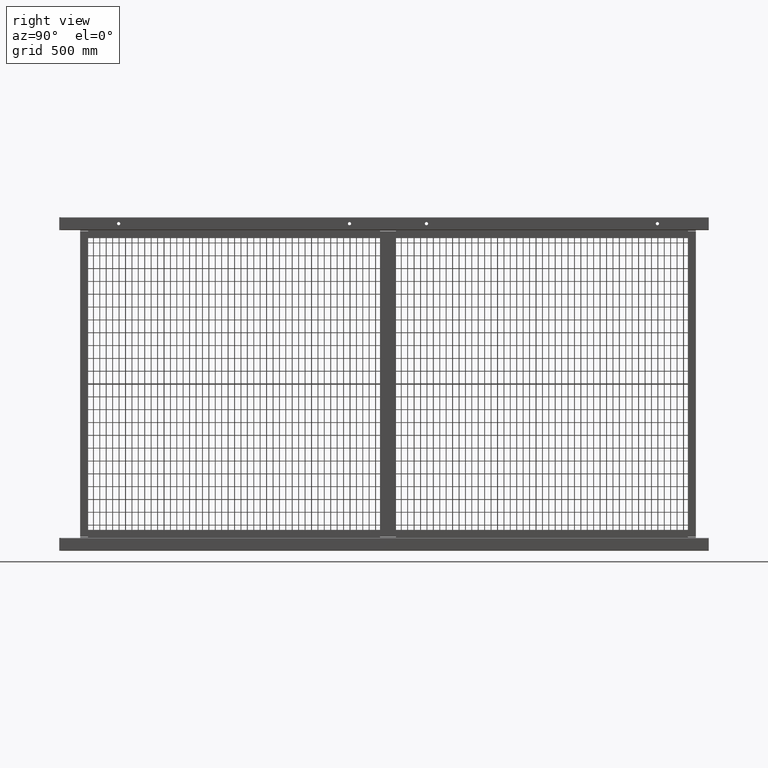
[diagram: clean part render]
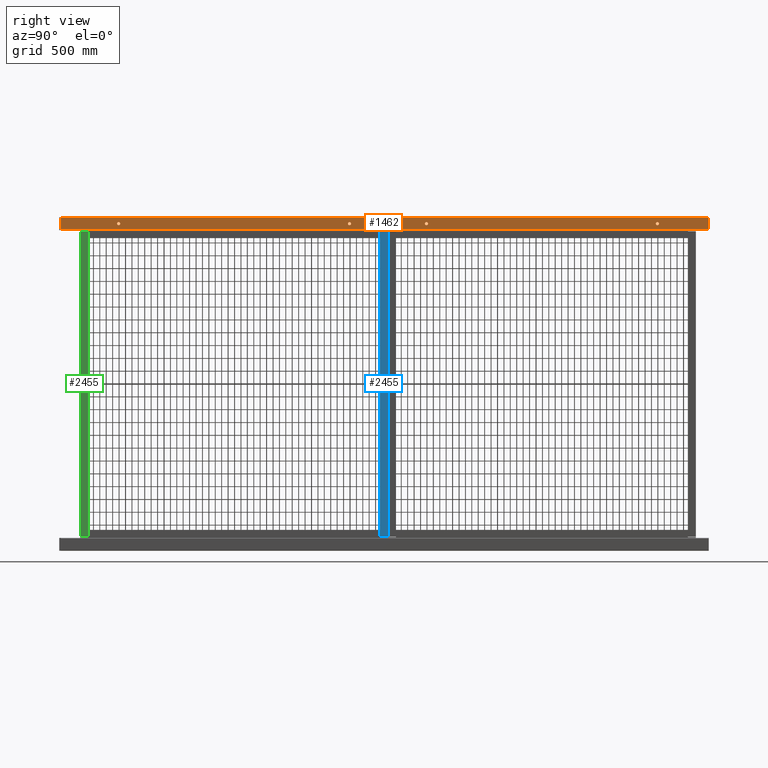
[diagram: same view with three faces highlighted in distinct colors, each labeled with its STEP entity id]
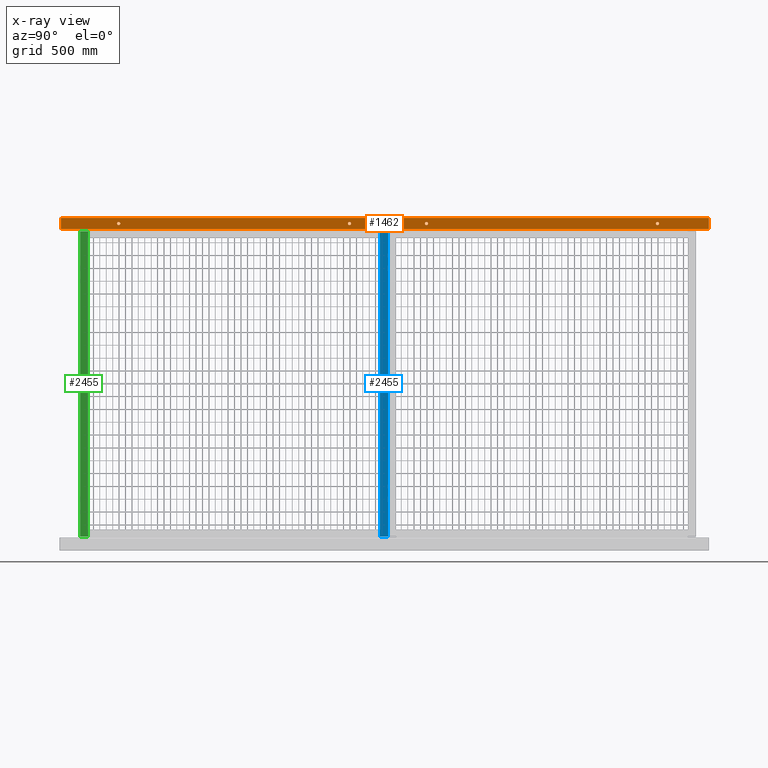
[diagram: x-ray of the same camera — body ghosted, the three highlighted faces saturated]
A machine part, right view with three faces highlighted in distinct colors.
The next image is the same camera in x-ray (body ghosted, the three faces saturated) — at least one of them is partly hidden behind the body in this view.
Their STEP definitions:

[orange] entity #1462 — the highlighted planar face has unit normal (1, 0, 0).
#703=CARTESIAN_POINT('',(1.0,2.817958E-014,44.750000000000000));
#704=VERTEX_POINT('',#703);
#705=CARTESIAN_POINT('',(1.0,2.814896E-014,45.000000000000007));
#706=DIRECTION('',(-1.0,0.0,0.0));
#707=DIRECTION('',(0.0,0.0,1.0));
#708=AXIS2_PLACEMENT_3D('',#705,#706,#707);
#709=CIRCLE('',#708,0.250000000000005);
#710=EDGE_CURVE('',#704,#704,#709,.T.);
#759=CARTESIAN_POINT('',(1.0,2.817958E-014,92.750000000000014));
#760=VERTEX_POINT('',#759);
#761=CARTESIAN_POINT('',(1.0,2.814896E-014,93.0));
#762=DIRECTION('',(-1.0,0.0,0.0));
#763=DIRECTION('',(0.0,0.0,1.0));
#764=AXIS2_PLACEMENT_3D('',#761,#762,#763);
#765=CIRCLE('',#764,0.249999999999998);
#766=EDGE_CURVE('',#760,#760,#765,.T.);
#815=CARTESIAN_POINT('',(1.0,2.817958E-014,56.750000000000007));
#816=VERTEX_POINT('',#815);
#817=CARTESIAN_POINT('',(1.0,2.814896E-014,57.000000000000007));
#818=DIRECTION('',(-1.0,0.0,0.0));
#819=DIRECTION('',(0.0,0.0,1.0));
#820=AXIS2_PLACEMENT_3D('',#817,#818,#819);
#821=CIRCLE('',#820,0.249999999999998);
#822=EDGE_CURVE('',#816,#816,#821,.T.);
#871=CARTESIAN_POINT('',(1.0,2.835442E-014,8.750000000000009));
#872=VERTEX_POINT('',#871);
#873=CARTESIAN_POINT('',(1.0,2.832380E-014,9.000000000000005));
#874=DIRECTION('',(-1.0,0.0,0.0));
#875=DIRECTION('',(0.0,0.0,1.0));
#876=AXIS2_PLACEMENT_3D('',#873,#874,#875);
#877=CIRCLE('',#876,0.249999999999997);
#878=EDGE_CURVE('',#872,#872,#877,.T.);
#1392=CARTESIAN_POINT('',(1.0,0.875000000000028,100.999999999999990));
#1393=VERTEX_POINT('',#1392);
#1401=CARTESIAN_POINT('',(1.0,0.875000000000028,0.0));
#1402=VERTEX_POINT('',#1401);
#1403=CARTESIAN_POINT('',(1.0,0.875000000000028,0.0));
#1404=DIRECTION('',(0.0,0.0,1.0));
#1405=VECTOR('',#1404,100.999999999999990);
#1406=LINE('',#1403,#1405);
#1407=EDGE_CURVE('',#1402,#1393,#1406,.T.);
#1420=CARTESIAN_POINT('',(1.0,0.875000000000028,0.0));
#1421=DIRECTION('',(1.0,0.0,0.0));
#1422=DIRECTION('',(0.0,0.0,-1.0));
#1423=AXIS2_PLACEMENT_3D('',#1420,#1421,#1422);
#1424=PLANE('',#1423);
#1425=CARTESIAN_POINT('',(1.0,-0.874999999999972,100.999999999999990));
#1426=VERTEX_POINT('',#1425);
#1427=CARTESIAN_POINT('',(1.0,0.875000000000028,100.999999999999990));
#1428=DIRECTION('',(0.0,-1.0,0.0));
#1429=VECTOR('',#1428,1.750000000000000);
#1430=LINE('',#1427,#1429);
#1431=EDGE_CURVE('',#1393,#1426,#1430,.T.);
#1432=ORIENTED_EDGE('',*,*,#1431,.T.);
#1433=CARTESIAN_POINT('',(1.0,-0.874999999999972,0.0));
#1434=VERTEX_POINT('',#1433);
#1435=CARTESIAN_POINT('',(1.0,-0.874999999999972,0.0));
#1436=DIRECTION('',(0.0,0.0,1.0));
#1437=VECTOR('',#1436,100.999999999999990);
#1438=LINE('',#1435,#1437);
#1439=EDGE_CURVE('',#1434,#1426,#1438,.T.);
#1440=ORIENTED_EDGE('',*,*,#1439,.F.);
#1441=CARTESIAN_POINT('',(1.0,0.875000000000028,0.0));
#1442=DIRECTION('',(0.0,-1.0,0.0));
#1443=VECTOR('',#1442,1.750000000000000);
#1444=LINE('',#1441,#1443);
#1445=EDGE_CURVE('',#1402,#1434,#1444,.T.);
#1446=ORIENTED_EDGE('',*,*,#1445,.F.);
#1447=ORIENTED_EDGE('',*,*,#1407,.T.);
#1448=EDGE_LOOP('',(#1432,#1440,#1446,#1447));
#1449=FACE_OUTER_BOUND('',#1448,.T.);
#1450=ORIENTED_EDGE('',*,*,#710,.T.);
#1451=EDGE_LOOP('',(#1450));
#1452=FACE_BOUND('',#1451,.T.);
#1453=ORIENTED_EDGE('',*,*,#766,.T.);
#1454=EDGE_LOOP('',(#1453));
#1455=FACE_BOUND('',#1454,.T.);
#1456=ORIENTED_EDGE('',*,*,#822,.T.);
#1457=EDGE_LOOP('',(#1456));
#1458=FACE_BOUND('',#1457,.T.);
#1459=ORIENTED_EDGE('',*,*,#878,.T.);
#1460=EDGE_LOOP('',(#1459));
#1461=FACE_BOUND('',#1460,.T.);
#1462=ADVANCED_FACE('',(#1449,#1452,#1455,#1458,#1461),#1424,.T.);

[blue] entity #2455 — the highlighted planar face has unit normal (1, 0, 0).
#2278=CARTESIAN_POINT('',(0.0,0.0,-23.812500000000000));
#2279=VERTEX_POINT('',#2278);
#2286=CARTESIAN_POINT('',(-1.250000000000000,0.0,-23.812500000000000));
#2287=VERTEX_POINT('',#2286);
#2288=CARTESIAN_POINT('',(-1.250000000000000,0.0,-23.812500000000000));
#2289=DIRECTION('',(1.0,0.0,0.0));
#2290=VECTOR('',#2289,1.250000000000000);
#2291=LINE('',#2288,#2290);
#2292=EDGE_CURVE('',#2287,#2279,#2291,.T.);
#2389=CARTESIAN_POINT('',(0.0,0.0,23.812500000000000));
#2390=VERTEX_POINT('',#2389);
#2397=CARTESIAN_POINT('',(0.0,0.0,23.812500000000000));
#2398=DIRECTION('',(0.0,0.0,-1.0));
#2399=VECTOR('',#2398,47.625000000000000);
#2400=LINE('',#2397,#2399);
#2401=EDGE_CURVE('',#2390,#2279,#2400,.T.);
#2432=CARTESIAN_POINT('',(0.0,0.0,0.0));
#2433=DIRECTION('',(0.0,-1.0,0.0));
#2434=DIRECTION('',(0.0,0.0,-1.0));
#2435=AXIS2_PLACEMENT_3D('',#2432,#2433,#2434);
#2436=PLANE('',#2435);
#2437=CARTESIAN_POINT('',(-1.250000000000000,0.0,23.812500000000000));
#2438=VERTEX_POINT('',#2437);
#2439=CARTESIAN_POINT('',(0.0,0.0,23.812500000000000));
#2440=DIRECTION('',(-1.0,0.0,0.0));
#2441=VECTOR('',#2440,1.250000000000000);
#2442=LINE('',#2439,#2441);
#2443=EDGE_CURVE('',#2390,#2438,#2442,.T.);
#2444=ORIENTED_EDGE('',*,*,#2443,.T.);
#2445=CARTESIAN_POINT('',(-1.250000000000000,0.0,23.812500000000000));
#2446=DIRECTION('',(0.0,0.0,-1.0));
#2447=VECTOR('',#2446,47.625000000000000);
#2448=LINE('',#2445,#2447);
#2449=EDGE_CURVE('',#2438,#2287,#2448,.T.);
#2450=ORIENTED_EDGE('',*,*,#2449,.T.);
#2451=ORIENTED_EDGE('',*,*,#2292,.T.);
#2452=ORIENTED_EDGE('',*,*,#2401,.F.);
#2453=EDGE_LOOP('',(#2444,#2450,#2451,#2452));
#2454=FACE_OUTER_BOUND('',#2453,.T.);
#2455=ADVANCED_FACE('',(#2454),#2436,.T.);

[green] entity #2455 — the highlighted planar face has unit normal (1, 0, 0).
#2278=CARTESIAN_POINT('',(0.0,0.0,-23.812500000000000));
#2279=VERTEX_POINT('',#2278);
#2286=CARTESIAN_POINT('',(-1.250000000000000,0.0,-23.812500000000000));
#2287=VERTEX_POINT('',#2286);
#2288=CARTESIAN_POINT('',(-1.250000000000000,0.0,-23.812500000000000));
#2289=DIRECTION('',(1.0,0.0,0.0));
#2290=VECTOR('',#2289,1.250000000000000);
#2291=LINE('',#2288,#2290);
#2292=EDGE_CURVE('',#2287,#2279,#2291,.T.);
#2389=CARTESIAN_POINT('',(0.0,0.0,23.812500000000000));
#2390=VERTEX_POINT('',#2389);
#2397=CARTESIAN_POINT('',(0.0,0.0,23.812500000000000));
#2398=DIRECTION('',(0.0,0.0,-1.0));
#2399=VECTOR('',#2398,47.625000000000000);
#2400=LINE('',#2397,#2399);
#2401=EDGE_CURVE('',#2390,#2279,#2400,.T.);
#2432=CARTESIAN_POINT('',(0.0,0.0,0.0));
#2433=DIRECTION('',(0.0,-1.0,0.0));
#2434=DIRECTION('',(0.0,0.0,-1.0));
#2435=AXIS2_PLACEMENT_3D('',#2432,#2433,#2434);
#2436=PLANE('',#2435);
#2437=CARTESIAN_POINT('',(-1.250000000000000,0.0,23.812500000000000));
#2438=VERTEX_POINT('',#2437);
#2439=CARTESIAN_POINT('',(0.0,0.0,23.812500000000000));
#2440=DIRECTION('',(-1.0,0.0,0.0));
#2441=VECTOR('',#2440,1.250000000000000);
#2442=LINE('',#2439,#2441);
#2443=EDGE_CURVE('',#2390,#2438,#2442,.T.);
#2444=ORIENTED_EDGE('',*,*,#2443,.T.);
#2445=CARTESIAN_POINT('',(-1.250000000000000,0.0,23.812500000000000));
#2446=DIRECTION('',(0.0,0.0,-1.0));
#2447=VECTOR('',#2446,47.625000000000000);
#2448=LINE('',#2445,#2447);
#2449=EDGE_CURVE('',#2438,#2287,#2448,.T.);
#2450=ORIENTED_EDGE('',*,*,#2449,.T.);
#2451=ORIENTED_EDGE('',*,*,#2292,.T.);
#2452=ORIENTED_EDGE('',*,*,#2401,.F.);
#2453=EDGE_LOOP('',(#2444,#2450,#2451,#2452));
#2454=FACE_OUTER_BOUND('',#2453,.T.);
#2455=ADVANCED_FACE('',(#2454),#2436,.T.);